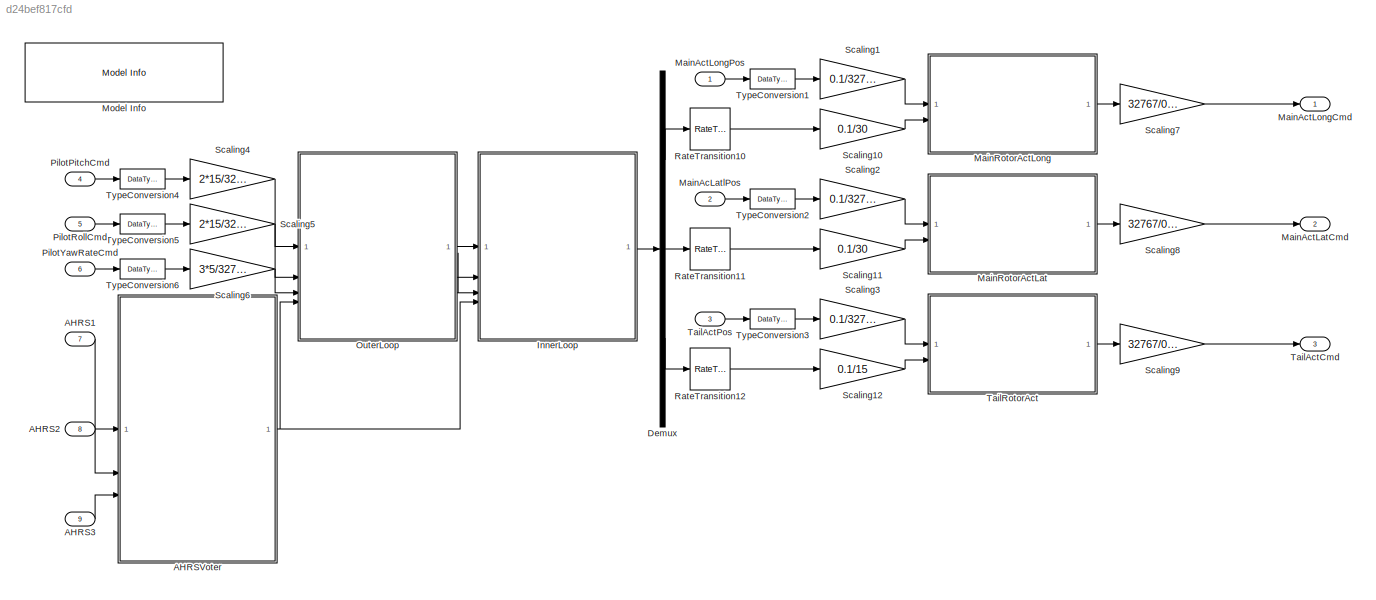
MODEL slx_d24bef817cfd
KIND model
CONFIG AbsTol = auto
CONFIG EnableMultiTasking = on
CONFIG FixedStep = auto
CONFIG MaxStep = auto
CONFIG MinStep = auto
CONFIG RelTol = 1e-3
CONFIG SampleTimeConstraint = Unconstrained
CONFIG SolverName = FixedStepDiscrete
CONFIG StartTime = 0.0
CONFIG StopTime = 10.0
BLOCK [Inport] AHRS1
  BusOutputAsStruct = on
  OutDataTypeStr = Bus: AHRS_Bus
  Port = 7
  PortDimensions = 1
  SampleTime = 0.01
BLOCK [Inport] AHRS2
  BusOutputAsStruct = on
  OutDataTypeStr = Bus: AHRS_Bus
  Port = 8
  PortDimensions = 1
  SampleTime = 0.01
BLOCK [Inport] AHRS3
  BusOutputAsStruct = on
  OutDataTypeStr = Bus: AHRS_Bus
  Port = 9
  PortDimensions = 1
  SampleTime = 0.01
BLOCK [ModelReference] AHRSVoter
  ModelNameDialog = AHRS_Voter
  ModelReferenceVersion = 8.0
BLOCK [Demux] Demux
  Outputs = 3
BLOCK [ModelReference] InnerLoop
  ModelNameDialog = InnerLoop_Control
  ModelReferenceVersion = 10.0
BLOCK [Inport] MainAcLatlPos
  OutDataTypeStr = int16
  OutMax = 32767
  OutMin = -32768
  Port = 2
  PortDimensions = 1
  SampleTime = 0.001
BLOCK [Outport] MainActLatCmd
  OutDataTypeStr = double
  Port = 2
  VectorParamsAs1DForOutWhenUnconnected = off
BLOCK [Outport] MainActLongCmd
  OutDataTypeStr = double
  VectorParamsAs1DForOutWhenUnconnected = off
BLOCK [Inport] MainActLongPos
  OutDataTypeStr = int16
  OutMax = 32767
  OutMin = -32768
  PortDimensions = 1
  SampleTime = 0.001
BLOCK [ModelReference] MainRotorActLat
  Kd = 0.02
  Ki = 0.12
  Kp = 0.3
  ModelNameDialog = Actuator_Control
  ModelReferenceVersion = 9.0
  N = 0.008
  UsingDefaultArgumentValue = 0,0,0,0
BLOCK [ModelReference] MainRotorActLong
  Kd = 0.02
  Ki = 0.12
  Kp = 0.3
  ModelNameDialog = Actuator_Control
  ModelReferenceVersion = 9.0
  N = 0.008
  UsingDefaultArgumentValue = 0,0,0,0
BLOCK [Reference] Model Info  REF=simulink/Model-Wide
Utilities/Model Info
  SourceBlock = simulink/Model-Wide\nUtilities/Model Info
  SourceType = CMBlock
BLOCK [ModelReference] OuterLoop
  ModelNameDialog = OuterLoop_Control
  ModelReferenceVersion = 8.0
BLOCK [Inport] PilotPitchCmd
  OutDataTypeStr = int16
  OutMax = 32767
  OutMin = -32768
  Port = 4
  PortDimensions = 1
  SampleTime = 0.01
BLOCK [Inport] PilotRollCmd
  OutDataTypeStr = int16
  OutMax = 32767
  OutMin = -32768
  Port = 5
  PortDimensions = 1
  SampleTime = 0.01
BLOCK [Inport] PilotYawRateCmd
  OutDataTypeStr = int16
  OutMax = 32767
  OutMin = -32768
  Port = 6
  PortDimensions = 1
  SampleTime = 0.01
BLOCK [RateTransition] RateTransition10
  OutPortSampleTime = 0.001
BLOCK [RateTransition] RateTransition11
  OutPortSampleTime = 0.001
BLOCK [RateTransition] RateTransition12
  OutPortSampleTime = 0.001
BLOCK [Gain] Scaling1
  Gain = 0.1/32768
BLOCK [Gain] Scaling10
  Gain = 0.1/30
BLOCK [Gain] Scaling11
  Gain = 0.1/30
BLOCK [Gain] Scaling12
  Gain = 0.1/15
BLOCK [Gain] Scaling2
  Gain = 0.1/32768
BLOCK [Gain] Scaling3
  Gain = 0.1/32768
BLOCK [Gain] Scaling4
  Gain = 2*15/32768
BLOCK [Gain] Scaling5
  Gain = 2*15/32768
BLOCK [Gain] Scaling6
  Gain = 3*5/32768
BLOCK [Gain] Scaling7
  Gain = 32767/0.3
  OutDataTypeStr = Inherit: Same as input
  SaturateOnIntegerOverflow = on
BLOCK [Gain] Scaling8
  Gain = 32767/0.3
  OutDataTypeStr = Inherit: Same as input
  SaturateOnIntegerOverflow = on
BLOCK [Gain] Scaling9
  Gain = 32767/0.3
  OutDataTypeStr = Inherit: Same as input
  SaturateOnIntegerOverflow = on
BLOCK [Outport] TailActCmd
  OutDataTypeStr = double
  Port = 3
  VectorParamsAs1DForOutWhenUnconnected = off
BLOCK [Inport] TailActPos
  OutDataTypeStr = int16
  OutMax = 32767
  OutMin = -32768
  Port = 3
  PortDimensions = 1
  SampleTime = 0.001
BLOCK [ModelReference] TailRotorAct
  Kd = 0.02
  Ki = 0.12
  Kp = 0.3
  ModelNameDialog = Actuator_Control
  ModelReferenceVersion = 9.0
  N = 0.008
  UsingDefaultArgumentValue = 0,0,0,0
BLOCK [DataTypeConversion] TypeConversion1
  OutDataTypeStr = double
  RndMeth = Floor
  SaturateOnIntegerOverflow = off
BLOCK [DataTypeConversion] TypeConversion2
  OutDataTypeStr = double
  RndMeth = Floor
  SaturateOnIntegerOverflow = off
BLOCK [DataTypeConversion] TypeConversion3
  OutDataTypeStr = double
  RndMeth = Floor
  SaturateOnIntegerOverflow = off
BLOCK [DataTypeConversion] TypeConversion4
  OutDataTypeStr = double
  RndMeth = Floor
  SaturateOnIntegerOverflow = off
BLOCK [DataTypeConversion] TypeConversion5
  OutDataTypeStr = double
  RndMeth = Floor
  SaturateOnIntegerOverflow = off
BLOCK [DataTypeConversion] TypeConversion6
  OutDataTypeStr = double
  RndMeth = Floor
  SaturateOnIntegerOverflow = off
LINE AHRS1:1 -> AHRSVoter:1
LINE AHRS2:1 -> AHRSVoter:2
LINE AHRS3:1 -> AHRSVoter:3
NET AHRSVoter:1 -> InnerLoop:4, OuterLoop:4
LINE Demux:1 -> RateTransition10:1
LINE Demux:2 -> RateTransition11:1
LINE Demux:3 -> RateTransition12:1
LINE InnerLoop:1 -> Demux:1
LINE MainAcLatlPos:1 -> TypeConversion2:1
LINE MainActLongPos:1 -> TypeConversion1:1
LINE MainRotorActLat:1 -> Scaling8:1
LINE MainRotorActLong:1 -> Scaling7:1
LINE OuterLoop:1 -> InnerLoop:1
LINE OuterLoop:2 -> InnerLoop:2
LINE OuterLoop:3 -> InnerLoop:3
LINE PilotPitchCmd:1 -> TypeConversion4:1
LINE PilotRollCmd:1 -> TypeConversion5:1
LINE PilotYawRateCmd:1 -> TypeConversion6:1
LINE RateTransition10:1 -> Scaling10:1
LINE RateTransition11:1 -> Scaling11:1
LINE RateTransition12:1 -> Scaling12:1
LINE Scaling10:1 -> MainRotorActLong:2
LINE Scaling11:1 -> MainRotorActLat:2
LINE Scaling12:1 -> TailRotorAct:2
LINE Scaling1:1 -> MainRotorActLong:1
LINE Scaling2:1 -> MainRotorActLat:1
LINE Scaling3:1 -> TailRotorAct:1
LINE Scaling4:1 -> OuterLoop:1
LINE Scaling5:1 -> OuterLoop:2
LINE Scaling6:1 -> OuterLoop:3
LINE Scaling7:1 -> MainActLongCmd:1
LINE Scaling8:1 -> MainActLatCmd:1
LINE Scaling9:1 -> TailActCmd:1
LINE TailActPos:1 -> TypeConversion3:1
LINE TailRotorAct:1 -> Scaling9:1
LINE TypeConversion1:1 -> Scaling1:1
LINE TypeConversion2:1 -> Scaling2:1
LINE TypeConversion3:1 -> Scaling3:1
LINE TypeConversion4:1 -> Scaling4:1
LINE TypeConversion5:1 -> Scaling5:1
LINE TypeConversion6:1 -> Scaling6:1
note: NET lines group one-source signal fan-out (src -> all destinations, sorted); 1:1 wires keep LINE
